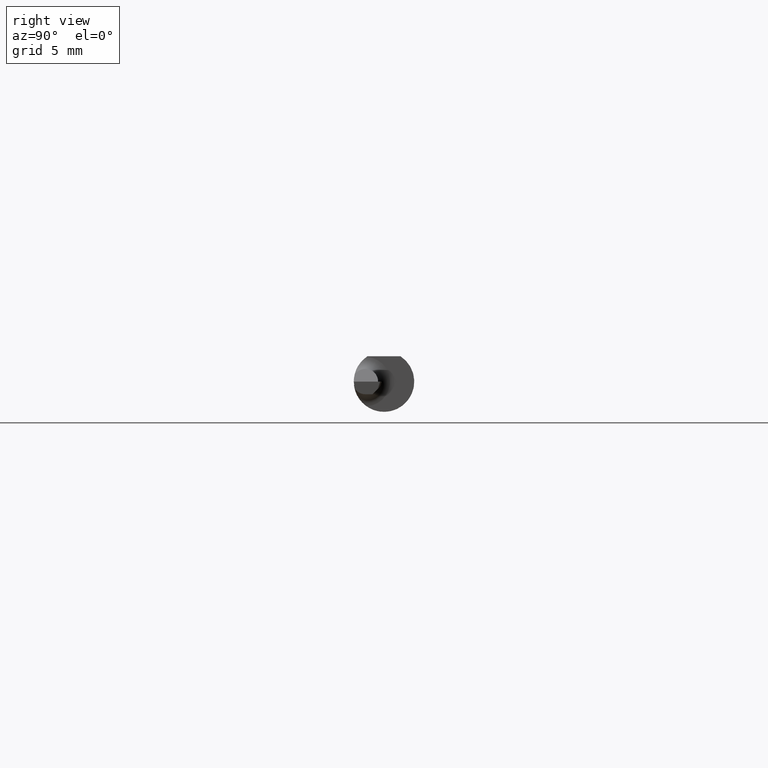
[diagram: clean part render]
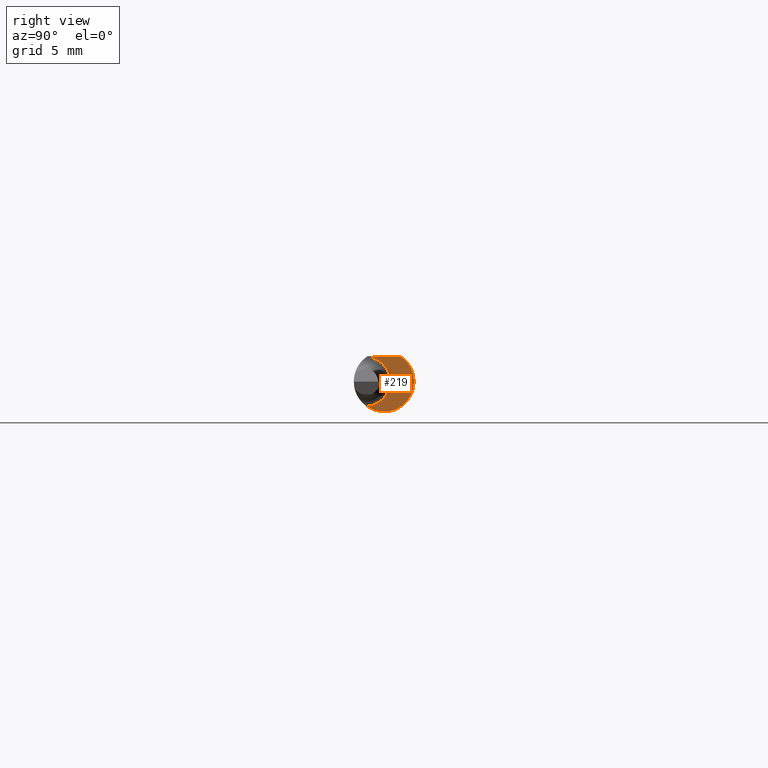
[diagram: same view with one face highlighted and labeled with its STEP entity id]
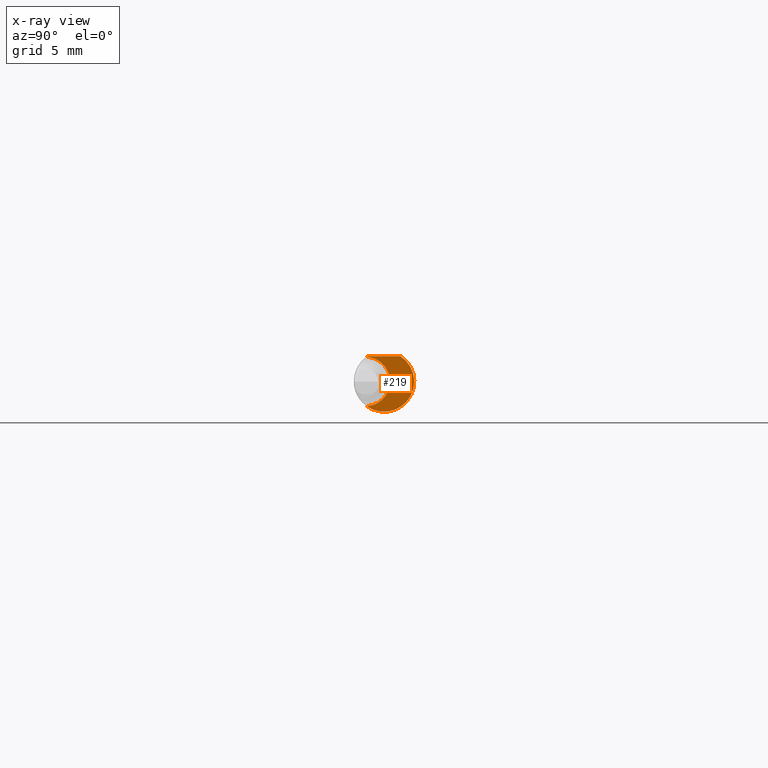
[diagram: x-ray of the same camera — body ghosted, the highlighted face saturated]
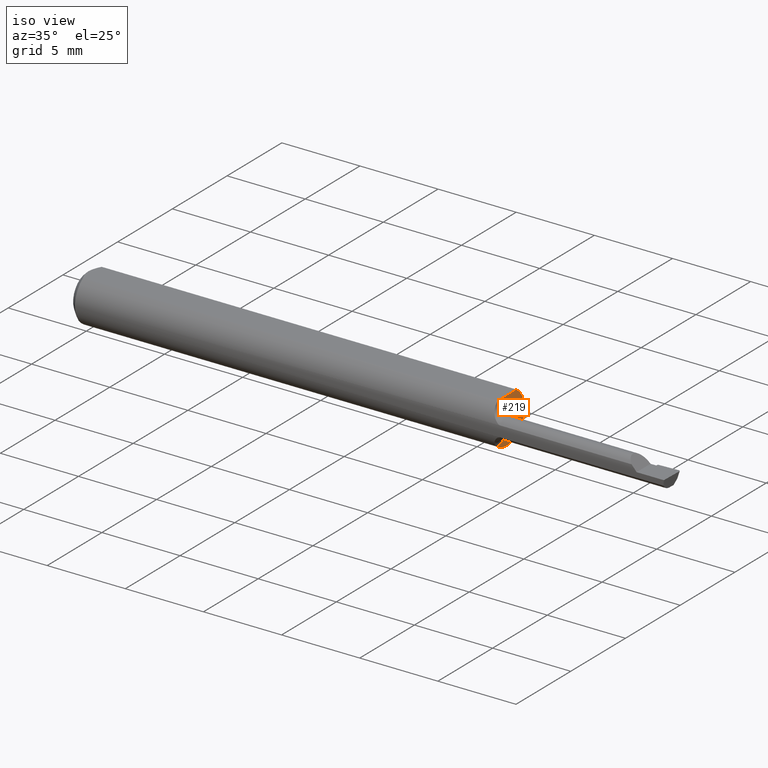
[diagram: same view with one face highlighted and labeled with its STEP entity id]
A machine part, right view. The second image highlights one B-rep face of the part: STEP entity #219.
The next image is the same camera in x-ray: the body ghosted, the highlighted face saturated — about 0% of this face is hidden behind the body in this view.
A second angle (iso view) of the same face is appended — the face is thin or edge-on in the first view.
In plain terms, the highlighted planar face has unit normal (1, -0, 0).
Its self-contained STEP definition (entity closure, byte-faithful):
#4 = AXIS2_PLACEMENT_3D ( 'NONE', #352, #344, #346 ) ;
#21 = DIRECTION ( 'NONE',  ( 0.0000000000000000000, 1.000000000000000000, 0.0000000000000000000 ) ) ;
#45 = AXIS2_PLACEMENT_3D ( 'NONE', #193, #494, #146 ) ;
#62 = CARTESIAN_POINT ( 'NONE',  ( 1.060000000000000275, 0.0000000000000000000, 0.0000000000000000000 ) ) ;
#69 = CIRCLE ( 'NONE', #78, 0.06235000000000000264 ) ;
#77 = PLANE ( 'NONE',  #370 ) ;
#78 = AXIS2_PLACEMENT_3D ( 'NONE', #62, #339, #21 ) ;
#98 = CIRCLE ( 'NONE', #4, 0.06235000000000000264 ) ;
#114 = CARTESIAN_POINT ( 'NONE',  ( 1.060000000000000275, -0.03575909090909097643, 0.05107651042656856377 ) ) ;
#146 = DIRECTION ( 'NONE',  ( 0.0000000000000000000, -1.000000000000000000, 0.0000000000000000000 ) ) ;
#159 = CARTESIAN_POINT ( 'NONE',  ( 1.060000000000000275, 0.1123499999999999915, 0.05234999999999998682 ) ) ;
#172 = LINE ( 'NONE', #159, #540 ) ;
#179 = EDGE_LOOP ( 'NONE', ( #208, #433, #511, #598 ) ) ;
#193 = CARTESIAN_POINT ( 'NONE',  ( 1.060000000000000275, -0.03849999999999999256, 0.0000000000000000000 ) ) ;
#205 = DIRECTION ( 'NONE',  ( -5.691349986800549142E-18, -1.000000000000000000, 7.598598113218357399E-17 ) ) ;
#208 = ORIENTED_EDGE ( 'NONE', *, *, #378, .T. ) ;
#219 = ADVANCED_FACE ( 'NONE', ( #531 ), #77, .T. ) ;
#257 = VERTEX_POINT ( 'NONE', #302 ) ;
#273 = EDGE_CURVE ( 'NONE', #257, #372, #172, .T. ) ;
#302 = CARTESIAN_POINT ( 'NONE',  ( 1.060000000000000275, 0.03386738844375224156, 0.05235000000000000070 ) ) ;
#304 = DIRECTION ( 'NONE',  ( 1.000000000000000000, -5.691349986800549142E-18, 0.0000000000000000000 ) ) ;
#326 = VERTEX_POINT ( 'NONE', #589 ) ;
#339 = DIRECTION ( 'NONE',  ( 1.000000000000000000, -5.691349986800549142E-18, 0.0000000000000000000 ) ) ;
#344 = DIRECTION ( 'NONE',  ( 1.000000000000000000, -5.691349986800549142E-18, 0.0000000000000000000 ) ) ;
#346 = DIRECTION ( 'NONE',  ( 0.0000000000000000000, 1.000000000000000000, 0.0000000000000000000 ) ) ;
#352 = CARTESIAN_POINT ( 'NONE',  ( 1.060000000000000275, 0.0000000000000000000, 0.0000000000000000000 ) ) ;
#356 = CARTESIAN_POINT ( 'NONE',  ( 1.060000000000000275, 0.01264999999999995989, 0.0000000000000000000 ) ) ;
#370 = AXIS2_PLACEMENT_3D ( 'NONE', #356, #304, #599 ) ;
#372 = VERTEX_POINT ( 'NONE', #496 ) ;
#378 = EDGE_CURVE ( 'NONE', #326, #257, #69, .T. ) ;
#381 = VERTEX_POINT ( 'NONE', #114 ) ;
#396 = EDGE_CURVE ( 'NONE', #381, #326, #464, .T. ) ;
#433 = ORIENTED_EDGE ( 'NONE', *, *, #273, .T. ) ;
#464 = CIRCLE ( 'NONE', #45, 0.05114999999999995939 ) ;
#494 = DIRECTION ( 'NONE',  ( -1.000000000000000000, 5.691349986800549142E-18, -0.0000000000000000000 ) ) ;
#496 = CARTESIAN_POINT ( 'NONE',  ( 1.060000000000000275, -0.03386738844380023788, 0.05235000000000000070 ) ) ;
#511 = ORIENTED_EDGE ( 'NONE', *, *, #588, .T. ) ;
#531 = FACE_OUTER_BOUND ( 'NONE', #179, .T. ) ;
#540 = VECTOR ( 'NONE', #205, 39.37007874015748143 ) ;
#588 = EDGE_CURVE ( 'NONE', #372, #381, #98, .T. ) ;
#589 = CARTESIAN_POINT ( 'NONE',  ( 1.060000000000000275, -0.03575909090909097643, -0.05107651042656856377 ) ) ;
#598 = ORIENTED_EDGE ( 'NONE', *, *, #396, .T. ) ;
#599 = DIRECTION ( 'NONE',  ( 5.691349986800549142E-18, 1.000000000000000000, 0.0000000000000000000 ) ) ;